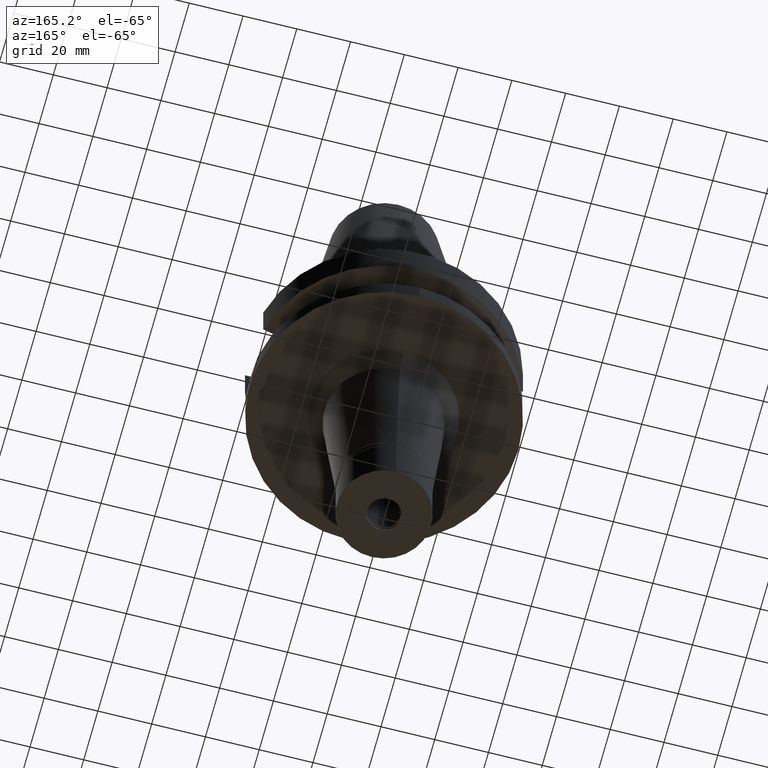
[diagram: clean part render]
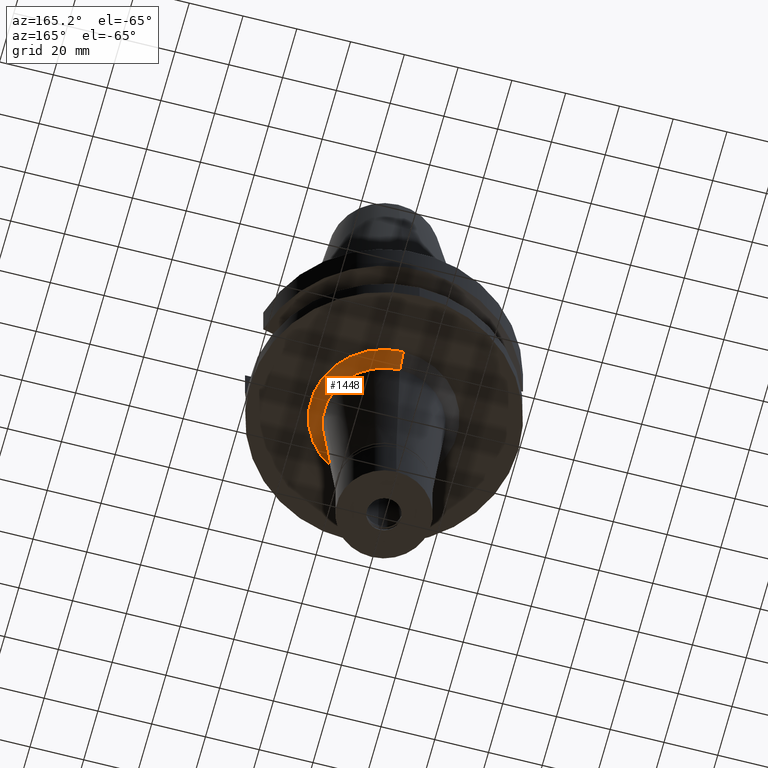
[diagram: same view with one face highlighted and labeled with its STEP entity id]
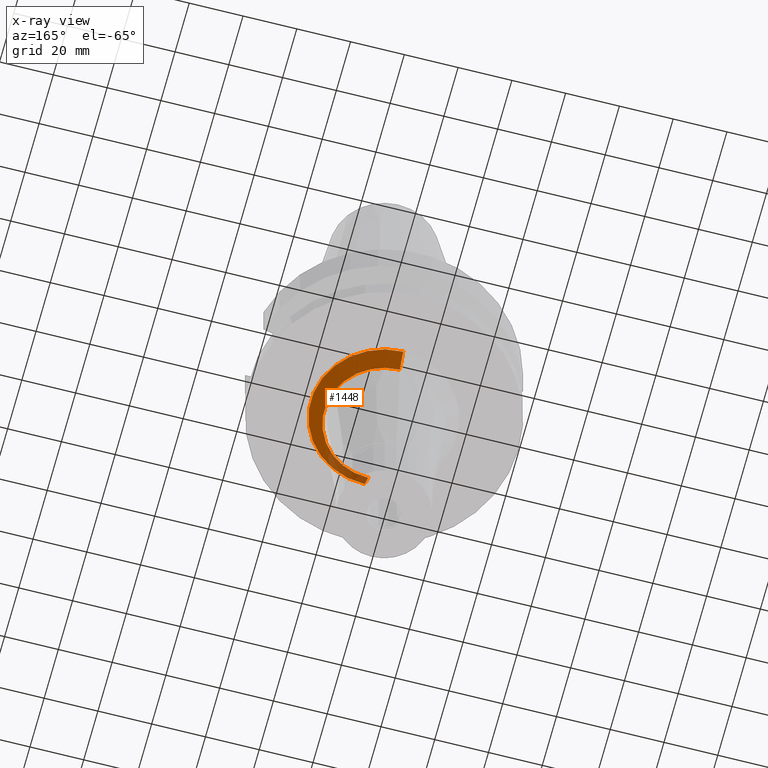
[diagram: x-ray of the same camera — body ghosted, the highlighted face saturated]
A machine part, auxiliary view. The second image highlights one B-rep face of the part: STEP entity #1448.
The next image is the same camera in x-ray: the body ghosted, the highlighted face saturated — about 12% of this face is hidden behind the body in this view.
In plain terms, the highlighted conical surface has half-angle 45 deg.
Its self-contained STEP definition (entity closure, byte-faithful):
#28 = CARTESIAN_POINT ( 'NONE',  ( 0.0000000000000000000, 0.0000000000000000000, -40.50000000000000000 ) ) ;
#70 = EDGE_CURVE ( 'NONE', #446, #242, #259, .T. ) ;
#96 = CARTESIAN_POINT ( 'NONE',  ( 0.0000000000000000000, -27.19814123134000283, -38.00000000000000000 ) ) ;
#234 = CARTESIAN_POINT ( 'NONE',  ( 0.0000000000000000000, 22.19814123133999928, -43.00000000000000000 ) ) ;
#242 = VERTEX_POINT ( 'NONE', #96 ) ;
#259 = CIRCLE ( 'NONE', #2926, 27.19814123134000283 ) ;
#287 = FACE_OUTER_BOUND ( 'NONE', #1422, .T. ) ;
#368 = LINE ( 'NONE', #2844, #523 ) ;
#446 = VERTEX_POINT ( 'NONE', #2918 ) ;
#518 = VECTOR ( 'NONE', #975, 1000.000000000000000 ) ;
#523 = VECTOR ( 'NONE', #2612, 1000.000000000000000 ) ;
#539 = DIRECTION ( 'NONE',  ( 0.0000000000000000000, 0.0000000000000000000, -1.000000000000000000 ) ) ;
#549 = DIRECTION ( 'NONE',  ( 0.0000000000000000000, 1.000000000000000000, 0.0000000000000000000 ) ) ;
#778 = CARTESIAN_POINT ( 'NONE',  ( 0.0000000000000000000, 0.0000000000000000000, -38.00000000000000000 ) ) ;
#961 = LINE ( 'NONE', #995, #518 ) ;
#975 = DIRECTION ( 'NONE',  ( 0.0000000000000000000, 0.7071067811864980568, -0.7071067811865969777 ) ) ;
#995 = CARTESIAN_POINT ( 'NONE',  ( 0.0000000000000000000, -27.19814123134000283, -38.00000000000000000 ) ) ;
#1185 = CIRCLE ( 'NONE', #2627, 22.19814123133999928 ) ;
#1235 = ORIENTED_EDGE ( 'NONE', *, *, #1761, .T. ) ;
#1278 = CONICAL_SURFACE ( 'NONE', #2362, 24.69814123133999928, 0.7853981633972997312 ) ;
#1422 = EDGE_LOOP ( 'NONE', ( #3170, #2742, #1235, #1898 ) ) ;
#1448 = ADVANCED_FACE ( 'NONE', ( #287 ), #1278, .T. ) ;
#1497 = EDGE_CURVE ( 'NONE', #242, #2776, #961, .T. ) ;
#1659 = CARTESIAN_POINT ( 'NONE',  ( 0.0000000000000000000, 0.0000000000000000000, -43.00000000000000000 ) ) ;
#1761 = EDGE_CURVE ( 'NONE', #2776, #1928, #1185, .T. ) ;
#1893 = DIRECTION ( 'NONE',  ( 0.0000000000000000000, -1.000000000000000000, 0.0000000000000000000 ) ) ;
#1898 = ORIENTED_EDGE ( 'NONE', *, *, #2351, .F. ) ;
#1928 = VERTEX_POINT ( 'NONE', #234 ) ;
#2219 = CARTESIAN_POINT ( 'NONE',  ( 0.0000000000000000000, -22.19814123133999928, -43.00000000000000000 ) ) ;
#2221 = DIRECTION ( 'NONE',  ( 0.0000000000000000000, 1.000000000000000000, 0.0000000000000000000 ) ) ;
#2351 = EDGE_CURVE ( 'NONE', #446, #1928, #368, .T. ) ;
#2353 = DIRECTION ( 'NONE',  ( 0.0000000000000000000, 0.0000000000000000000, 1.000000000000000000 ) ) ;
#2362 = AXIS2_PLACEMENT_3D ( 'NONE', #28, #2934, #2221 ) ;
#2612 = DIRECTION ( 'NONE',  ( 0.0000000000000000000, -0.7071067811864980568, -0.7071067811865969777 ) ) ;
#2627 = AXIS2_PLACEMENT_3D ( 'NONE', #1659, #2353, #1893 ) ;
#2742 = ORIENTED_EDGE ( 'NONE', *, *, #1497, .T. ) ;
#2776 = VERTEX_POINT ( 'NONE', #2219 ) ;
#2844 = CARTESIAN_POINT ( 'NONE',  ( 0.0000000000000000000, 27.19814123134000283, -38.00000000000000000 ) ) ;
#2918 = CARTESIAN_POINT ( 'NONE',  ( 0.0000000000000000000, 27.19814123134000283, -38.00000000000000000 ) ) ;
#2926 = AXIS2_PLACEMENT_3D ( 'NONE', #778, #539, #549 ) ;
#2934 = DIRECTION ( 'NONE',  ( 0.0000000000000000000, 0.0000000000000000000, 1.000000000000000000 ) ) ;
#3170 = ORIENTED_EDGE ( 'NONE', *, *, #70, .T. ) ;